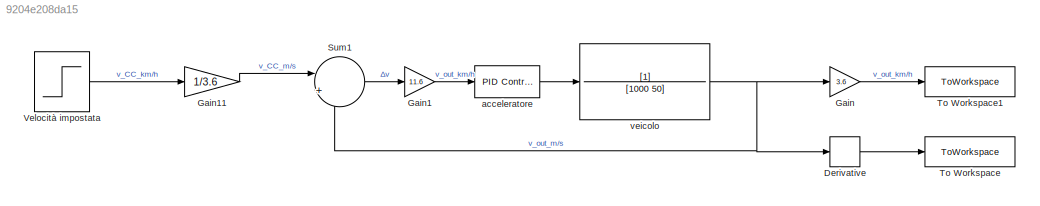
MODEL slx_9204e208da15
KIND model
CONFIG AbsTol = auto
CONFIG EnableMultiTasking = off
CONFIG FixedStep = auto
CONFIG MaxStep = auto
CONFIG MinStep = auto
CONFIG RelTol = 1e-3
CONFIG SampleTimeConstraint = Unconstrained
CONFIG SolverName = VariableStepAuto
CONFIG StartTime = 0.0
CONFIG StopTime = 15
BLOCK [Derivative] Derivative
BLOCK [Gain] Gain
  Gain = 3.6
BLOCK [Gain] Gain1
  Gain = 11.6
BLOCK [Gain] Gain11
  Gain = 1/3.6
BLOCK [Sum] Sum1
  Inputs = |+-
BLOCK [ToWorkspace] To Workspace
  FixptAsFi = on
  MaxDataPoints = inf
  SampleTime = -1
  VariableName = accelerazione
BLOCK [ToWorkspace] To Workspace1
  FixptAsFi = on
  MaxDataPoints = inf
  SampleTime = -1
  VariableName = velocit
BLOCK [Step] Velocità impostata
  SampleTime = 0.0001
  Time = 0
BLOCK [Reference] acceleratore  REF=slpidlib/PID Controller
  SourceBlock = slpidlib/PID Controller
  SourceType = PID 1dof
BLOCK [TransferFcn] veicolo
  Denominator = [1000 50]
LINE Derivative:1 -> To Workspace:1
LINE Gain11:1 -> Sum1:1
LINE Gain1:1 -> acceleratore:1
LINE Gain:1 -> To Workspace1:1
LINE Sum1:1 -> Gain1:1
LINE Velocità impostata:1 -> Gain11:1
LINE acceleratore:1 -> veicolo:1
NET veicolo:1 -> Derivative:1, Gain:1, Sum1:2
note: NET lines group one-source signal fan-out (src -> all destinations, sorted); 1:1 wires keep LINE
